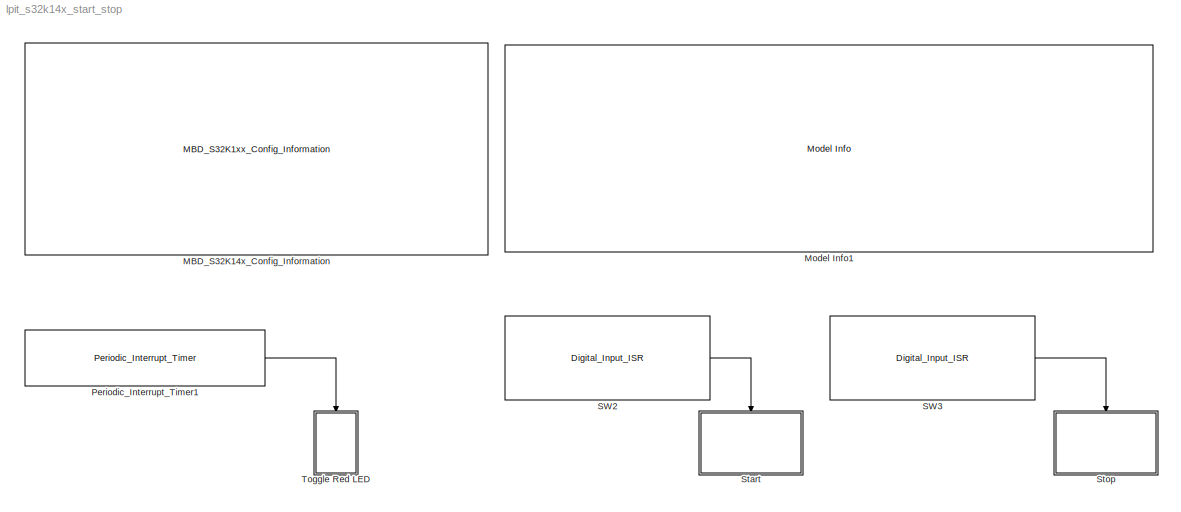
MODEL lpit_s32k14x_start_stop
KIND model
CONFIG InitFcn = mbd_s32k_consistency_checks(bdroot(gcs));
BLOCK [Reference] MBD_S32K14x_Config_Information  REF=mbd_s32k1xx_ec_toolbox/MBD_S32K1xx_Config_Information
  ADC_PcrCheckEnDis = on
  AMMCLIB_PcrCheckEnDis = on
  CMP_PcrCheckEnDis = on
  CSEc_PcrCheckEnDis = on
  ConfigParams_PcrCheckEnDis = on
  FM_PcrCheckEnDis = on
  FTM_Dual_Edge_Inputs_PcrCheckEnDis = on
  FTM_Hall_Sensor_Inputs_PcrCheckEnDis = on
  FTM_Input_Edge_Inputs_PcrCheckEnDis = on
  FTM_PWM_PcrCheckEnDis = on
  FTM_Quadrature_Inputs_PcrCheckEnDis = on
  FlexCAN_PcrCheckEnDis = on
  FlexIO_PcrCheckEnDis = on
  GPIO_InputPcrCheckEnDis = on
  GPIO_OutputPcrCheckEnDis = on
  LIN_PcrCheckEnDis = on
  LPI2C_PcrCheckEnDis = on
  LPSPI_PcrCheckEnDis = on
  LPTMR_PcrCheckEnDis = on
  LPUART_PcrCheckEnDis = on
  ModelRef_PcrCheckEnDis = on
  PDB0_PcrCheckEnDis = on
  PIT_PcrCheckEnDis = on
  Ports = []
  Profile_PcrCheckEnDis = on
  RTC_PcrCheckEnDis = on
  SBC_PcrCheckEnDis = on
  SID = 38
  SourceBlock = mbd_s32k1xx_ec_toolbox/MBD_S32K1xx_Config_Information
  SourceType = MBDTBX_EC_S32K
  WDOG_PcrCheckEnDis = on
  config_params = []
  disp_str = Target : S32K144-64KB_SRAM\nPackage : 100-pin\nSystem clock : 80 MHz\nXTAL clock : External 8 MHz\nCompiler : IAR\nTarget Type : FLASH\nDownload Code after build : off\nStep Tick Interrupt Priority : 15
  ds_import_enable = on
  eDMA_PcrCheckEnDis = on
  gcc_target_assemble_opts = -mcpu=cortex-m4 -mthumb -mfloat-abi=hard -mfpu=fpv4-sp-d16 -g
  gcc_target_compile_opts = -mcpu=cortex-m4 -mthumb -mfloat-abi=hard -mfpu=fpv4-sp-d16 -O1 -g -gstrict-dwarf
  gcc_target_default_lcf = on
  gcc_target_link_opts = -mcpu=cortex-m4 -mthumb -mfloat-abi=hard -mfpu=fpv4-sp-d16
  gcc_target_user_lcf = S32K144_48_flash.ld
  ghs_target_assemble_opts = -cpu=cortexm4f -fpu=vfpv4_d16
  ghs_target_compile_opts = -cpu=cortexm4f -thumb -DARM_MATH_CM4 -fpu=vfpv4_d16 -fsingle -Ogeneral -Wundef -Wimplicit-int -Wshadow -Wtrigraphs --no_commons --gnu_asm -gnu99 -gdwarf-2 -G
  ghs_target_default_lcf = on
  ghs_target_link_opts = -cpu=cortexm4f -thumb -fpu=vfpv4_d16
  ghs_target_user_lcf = S32K144_48_flash.ld
  iar_target_assemble_opts = --cpu Cortex-M4F --thumb --fpu VFPv4_sp
  iar_target_compile_opts = --cpu=Cortex-M4F --thumb --fpu=VFPv4_sp -Ol -e --debug --dlib_config normal
  iar_target_default_lcf = on
  iar_target_link_opts = --no_exceptions --vfe --inline
  iar_target_user_lcf = S32K144_48_flash.icf
  mbdt_ver = 0
  mcu_steptick_prio = 15
  mcu_steptick_timer = LPIT Channel 0
  mcu_system_clock_freq = 80
  mcu_target_name = S32K144
  mcu_target_package = 64-LQFP
  mcu_target_sram_size = 48KB
  mcu_xtal_freq = External 8
  pil_download_enable = off
  pil_download_rate = 57600
  pil_opensda_drive = Custom
  pil_opensda_drive_custom = D
  pil_uart_instance = 0
  pil_uart_rx = PTA2: [LPUART0_RX | Receive]
  pil_uart_tx = PTA3: [LPUART0_TX | Transmit]
  rbl_com_port = Custom
  rbl_com_port_custom = COM1
  rbl_download_enable = on
  rbl_download_interface = OpenSDA
  rbl_restart_request = off
  rbl_start_delay = 5000
  target_compiler = GCC
  target_memory = FLASH
BLOCK [Reference] Model Info1  REF=simulink/Model-Wide\nUtilities/Model Info
  DisplayStringWithTags = Model Name: %<ModelName>\n\nDescription: %<Description>
  Frame = off
  HorizontalTextAlignment = Left
  LeftAlignmentValue = 0.02
  MaskDisplayString = Model Name: lpit_s32k14x_start_stop\\n\\nDescription: This example demonstrates the basic usage of LPIT block: generates a periodic interrupt having:\\n- period 2s\\n- priority 15\\n\\nUsage: You can start/stop the counter used by LPIT using:\\n- SW2 - start the counter\\n- SW3 - stop the counter\\n\\nValidation: the red LED should toggle every 2s; when pressing SW3, the LED should remain as it is...<+42ch>
  Ports = []
  SID = 45
  SourceBlock = simulink/Model-Wide\nUtilities/Model Info
  SourceProductBaseCode = SL
  SourceProductName = Simulink
  SourceType = CMBlock
BLOCK [Reference] Periodic_Interrupt_Timer1  REF=mbd_s32k1xx_ec_toolbox/Utility Blocks/Periodic_Interrupt_Timer
  Ports = [0, 1]
  SID = 44
  SourceBlock = mbd_s32k1xx_ec_toolbox/Utility Blocks/Periodic_Interrupt_Timer
  SourceType = timer_s32k_lpit
  channel = 1
  period = 2000000
  prio = 15
  startCounter = on
BLOCK [Reference] SW2  REF=mbd_s32k1xx_ec_toolbox/GPIO Blocks/Digital_Input_ISR
  Ports = [0, 1]
  SID = 39
  SourceBlock = mbd_s32k1xx_ec_toolbox/GPIO Blocks/Digital_Input_ISR
  SourceType = gpi_s32k_isr
  gpio_pin = PTC12: [PTC12 | Port C I/O]
  irqc = on rising-edge
  prio = 3
BLOCK [Reference] SW3  REF=mbd_s32k1xx_ec_toolbox/GPIO Blocks/Digital_Input_ISR
  Ports = [0, 1]
  SID = 40
  SourceBlock = mbd_s32k1xx_ec_toolbox/GPIO Blocks/Digital_Input_ISR
  SourceType = gpi_s32k_isr
  gpio_pin = PTC13: [PTC13 | Port C I/O]
  irqc = on rising-edge
  prio = 3
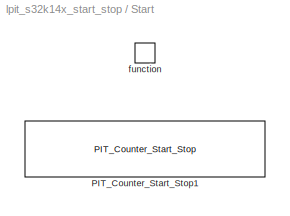
BLOCK [SubSystem] Start
  Ports = [0, 0, 0, 1]
  RTWSystemCode = Nonreusable function
  RequestExecContextInheritance = off
  SID = 11
  Variant = off
BLOCK [Reference] Start/PIT_Counter_Start_Stop1  REF=mbd_s32k1xx_ec_toolbox/Utility Blocks/PIT_Counter_Start_Stop
  Ports = []
  SID = 42
  SourceBlock = mbd_s32k1xx_ec_toolbox/Utility Blocks/PIT_Counter_Start_Stop
  SourceType = timer_s32k_lpit_counter_start_stop
  action = Start
  channel = 1
BLOCK [TriggerPort] Start/function
  Ports = []
  SID = 12
  StatesWhenEnabling = held
  TriggerType = function-call
  VariantControl = Variant
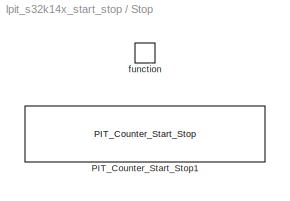
BLOCK [SubSystem] Stop
  Ports = [0, 0, 0, 1]
  RTWSystemCode = Nonreusable function
  RequestExecContextInheritance = off
  SID = 23
  Variant = off
BLOCK [Reference] Stop/PIT_Counter_Start_Stop1  REF=mbd_s32k1xx_ec_toolbox/Utility Blocks/PIT_Counter_Start_Stop
  Ports = []
  SID = 43
  SourceBlock = mbd_s32k1xx_ec_toolbox/Utility Blocks/PIT_Counter_Start_Stop
  SourceType = timer_s32k_lpit_counter_start_stop
  action = Stop
  channel = 1
BLOCK [TriggerPort] Stop/function
  Ports = []
  SID = 24
  StatesWhenEnabling = held
  TriggerType = function-call
  VariantControl = Variant
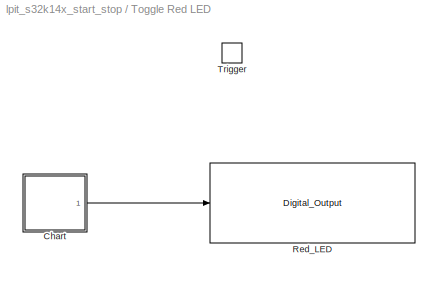
BLOCK [SubSystem] Toggle Red LED
  Ports = [0, 0, 0, 1]
  RequestExecContextInheritance = off
  SID = 5
  Variant = off
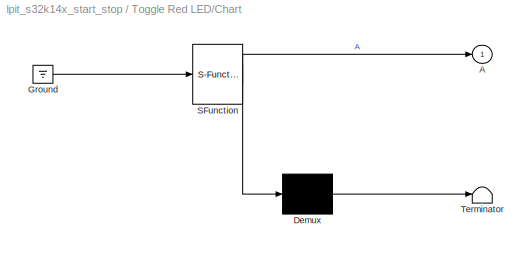
BLOCK [SubSystem] Toggle Red LED/Chart
  ErrorFcn = Stateflow.Translate.translate
  PermitHierarchicalResolution = ExplicitOnly
  Ports = [0, 1]
  RequestExecContextInheritance = off
  SFBlockType = Chart
  SID = 4
  TreatAsAtomicUnit = on
  Variant = off
BLOCK [Outport] Toggle Red LED/Chart/ A
  IconDisplay = Port number
  SID = 4::6
BLOCK [Demux] Toggle Red LED/Chart/ Demux 
  Outputs = 1
  Ports = [1, 1]
  SID = 4::44
BLOCK [Ground] Toggle Red LED/Chart/ Ground 
  SID = 4::46
BLOCK [S-Function] Toggle Red LED/Chart/ SFunction 
  EnableBusSupport = off
  FunctionName = sf_sfun
  PortCounts = [1 2]
  Ports = [1, 2]
  SFcnIsStateOwnerBlock = off
  SFunctionDeploymentMode = off
  SID = 4::43
  Tag = Stateflow S-Function lpit_s32k14x_start_stop 3
BLOCK [Terminator] Toggle Red LED/Chart/ Terminator 
  SID = 4::45
BLOCK [Reference] Toggle Red LED/Red_LED  REF=mbd_s32k1xx_ec_toolbox/GPIO Blocks/Digital_Output
  Ports = [1]
  SID = 41
  SourceBlock = mbd_s32k1xx_ec_toolbox/GPIO Blocks/Digital_Output
  SourceType = gpio_s32k_output
  drive_strength = Low
  gpio_pin = PTD15: [PTD15 | Port D I/O]
  init_val = Low
BLOCK [TriggerPort] Toggle Red LED/Trigger
  PortDimensions = 1
  Ports = []
  SID = 6
  StatesWhenEnabling = held
  TriggerType = function-call
  VariantControl = Variant
LINE Periodic_Interrupt_Timer1:1 -> Toggle Red LED:trigger
LINE SW2:1 -> Start:trigger
LINE SW3:1 -> Stop:trigger
LINE Toggle Red LED/Chart/ Demux :1 -> Toggle Red LED/Chart/ Terminator :1
LINE Toggle Red LED/Chart/ Ground :1 -> Toggle Red LED/Chart/ SFunction :1
LINE Toggle Red LED/Chart/ SFunction :1 -> Toggle Red LED/Chart/ Demux :1
LINE Toggle Red LED/Chart/ SFunction :2 -> Toggle Red LED/Chart/ A:1
LINE Toggle Red LED/Chart:1 -> Toggle Red LED/Red_LED:1
CHART Toggle Red LED/Chart states=2 transitions=3
  STATE_LABEL 'A'
  STATE_LABEL 'A1'
